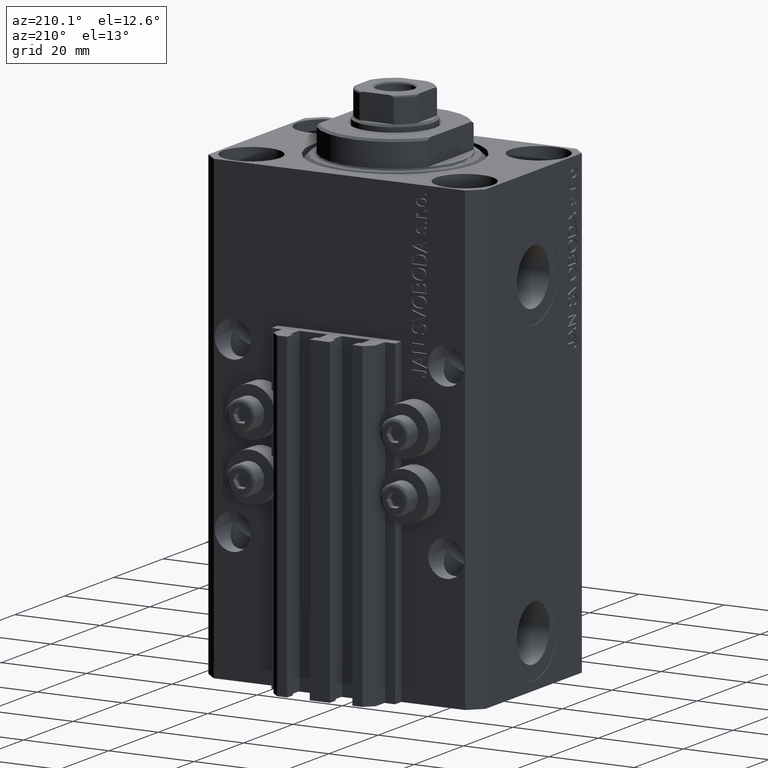
[diagram: clean part render]
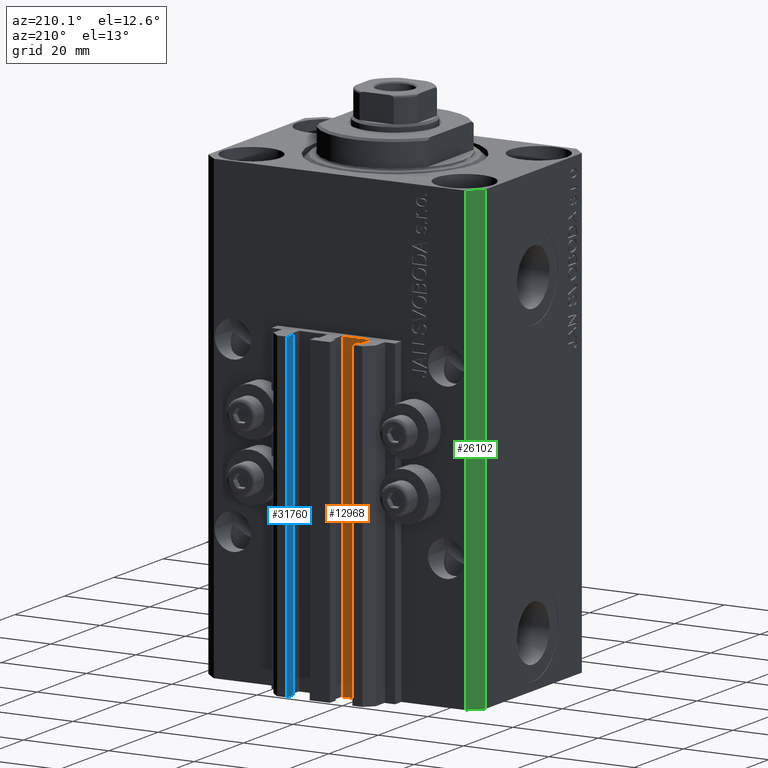
[diagram: same view with three faces highlighted in distinct colors, each labeled with its STEP entity id]
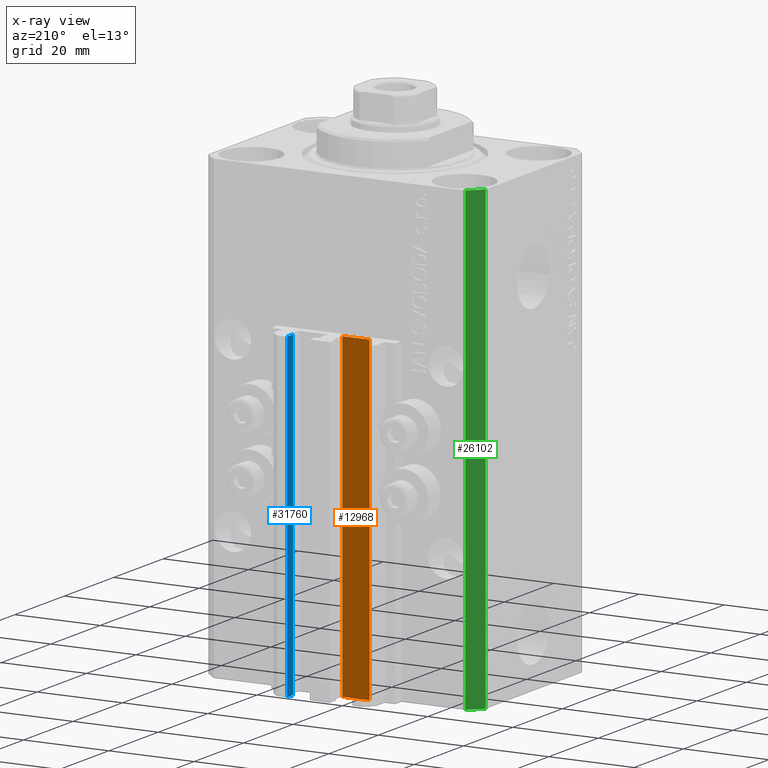
[diagram: x-ray of the same camera — body ghosted, the three highlighted faces saturated]
A machine part, auxiliary view with three faces highlighted in distinct colors.
The next image is the same camera in x-ray (body ghosted, the three faces saturated) — at least one of them is partly hidden behind the body in this view.
Their STEP definitions:

[orange] entity #12968 — the highlighted planar face has unit normal (0, 1, 0).
#547 = VERTEX_POINT ( 'NONE', #10346 ) ;
#3389 = EDGE_CURVE ( 'NONE', #547, #13100, #31306, .T. ) ;
#5018 = DIRECTION ( 'NONE',  ( -1.000000000000000000, 0.000000000000000000, 0.000000000000000000 ) ) ;
#5440 = LINE ( 'NONE', #26931, #20010 ) ;
#5746 = CARTESIAN_POINT ( 'NONE',  ( -1.800000000000000933, 24.49999999999949551, -108.0000000000000000 ) ) ;
#6365 = ORIENTED_EDGE ( 'NONE', *, *, #3389, .F. ) ;
#6702 = CARTESIAN_POINT ( 'NONE',  ( -8.199999999999999289, 24.49999999999949551, -33.00000000000000000 ) ) ;
#7763 = LINE ( 'NONE', #18623, #32738 ) ;
#9638 = EDGE_CURVE ( 'NONE', #40464, #547, #17305, .T. ) ;
#10346 = CARTESIAN_POINT ( 'NONE',  ( -1.800000000000000933, 24.49999999999949551, -33.00000000000000000 ) ) ;
#11696 = VECTOR ( 'NONE', #14173, 1000.000000000000000 ) ;
#12921 = EDGE_CURVE ( 'NONE', #40464, #19766, #7763, .T. ) ;
#12968 = ADVANCED_FACE ( 'NONE', ( #42662 ), #42418, .T. ) ;
#13100 = VERTEX_POINT ( 'NONE', #6702 ) ;
#13444 = CARTESIAN_POINT ( 'NONE',  ( -1.800000000000000933, 24.49999999999949551, -108.0000000000000000 ) ) ;
#14173 = DIRECTION ( 'NONE',  ( 0.000000000000000000, 0.000000000000000000, 1.000000000000000000 ) ) ;
#16312 = ORIENTED_EDGE ( 'NONE', *, *, #9638, .F. ) ;
#16777 = DIRECTION ( 'NONE',  ( 0.000000000000000000, 0.000000000000000000, 1.000000000000000000 ) ) ;
#17305 = LINE ( 'NONE', #13444, #11696 ) ;
#18623 = CARTESIAN_POINT ( 'NONE',  ( -1.800000000000000933, 24.49999999999949551, -108.0000000000000000 ) ) ;
#18874 = ORIENTED_EDGE ( 'NONE', *, *, #12921, .T. ) ;
#19766 = VERTEX_POINT ( 'NONE', #45561 ) ;
#20010 = VECTOR ( 'NONE', #16777, 1000.000000000000000 ) ;
#20861 = VECTOR ( 'NONE', #5018, 1000.000000000000000 ) ;
#23200 = DIRECTION ( 'NONE',  ( 0.000000000000000000, 0.000000000000000000, 1.000000000000000000 ) ) ;
#25397 = DIRECTION ( 'NONE',  ( -1.000000000000000000, 0.000000000000000000, 0.000000000000000000 ) ) ;
#25685 = CARTESIAN_POINT ( 'NONE',  ( -1.800000000000000933, 24.49999999999949551, -108.0000000000000000 ) ) ;
#26931 = CARTESIAN_POINT ( 'NONE',  ( -8.199999999999999289, 24.49999999999949551, -108.0000000000000000 ) ) ;
#27453 = CARTESIAN_POINT ( 'NONE',  ( -1.800000000000000933, 24.49999999999949551, -33.00000000000000000 ) ) ;
#27713 = DIRECTION ( 'NONE',  ( 0.000000000000000000, 1.000000000000000000, -0.000000000000000000 ) ) ;
#31306 = LINE ( 'NONE', #27453, #20861 ) ;
#32738 = VECTOR ( 'NONE', #25397, 1000.000000000000000 ) ;
#37591 = ORIENTED_EDGE ( 'NONE', *, *, #46596, .T. ) ;
#40464 = VERTEX_POINT ( 'NONE', #25685 ) ;
#42418 = PLANE ( 'NONE',  #43518 ) ;
#42662 = FACE_OUTER_BOUND ( 'NONE', #44506, .T. ) ;
#43518 = AXIS2_PLACEMENT_3D ( 'NONE', #5746, #27713, #23200 ) ;
#44506 = EDGE_LOOP ( 'NONE', ( #6365, #16312, #18874, #37591 ) ) ;
#45561 = CARTESIAN_POINT ( 'NONE',  ( -8.199999999999999289, 24.49999999999949551, -108.0000000000000000 ) ) ;
#46596 = EDGE_CURVE ( 'NONE', #19766, #13100, #5440, .T. ) ;

[blue] entity #31760 — the highlighted planar face has unit normal (-1, -0, 0).
#1666 = VECTOR ( 'NONE', #25533, 1000.000000000000000 ) ;
#3421 = VECTOR ( 'NONE', #14336, 1000.000000000000000 ) ;
#4790 = CARTESIAN_POINT ( 'NONE',  ( 7.649999999999995026, 30.49999999999949196, -108.0000000000000000 ) ) ;
#4886 = LINE ( 'NONE', #26616, #30427 ) ;
#6706 = DIRECTION ( 'NONE',  ( 3.614007241618365041E-16, -1.000000000000000000, 0.000000000000000000 ) ) ;
#7313 = VERTEX_POINT ( 'NONE', #13264 ) ;
#7888 = ORIENTED_EDGE ( 'NONE', *, *, #26083, .T. ) ;
#9190 = FACE_OUTER_BOUND ( 'NONE', #27906, .T. ) ;
#10450 = AXIS2_PLACEMENT_3D ( 'NONE', #27314, #23920, #6706 ) ;
#10805 = CARTESIAN_POINT ( 'NONE',  ( 7.649999999999995026, 30.49999999999949196, -33.00000000000000000 ) ) ;
#11655 = VECTOR ( 'NONE', #39498, 1000.000000000000000 ) ;
#13264 = CARTESIAN_POINT ( 'NONE',  ( 7.649999999999995026, 30.49999999999949196, -108.0000000000000000 ) ) ;
#14336 = DIRECTION ( 'NONE',  ( 0.000000000000000000, 0.000000000000000000, 1.000000000000000000 ) ) ;
#14439 = LINE ( 'NONE', #10805, #1666 ) ;
#17034 = VERTEX_POINT ( 'NONE', #33476 ) ;
#17564 = PLANE ( 'NONE',  #10450 ) ;
#17642 = EDGE_CURVE ( 'NONE', #7313, #41990, #45089, .T. ) ;
#19179 = EDGE_CURVE ( 'NONE', #17034, #31452, #14439, .T. ) ;
#19600 = DIRECTION ( 'NONE',  ( 0.000000000000000000, 0.000000000000000000, 1.000000000000000000 ) ) ;
#23920 = DIRECTION ( 'NONE',  ( -1.000000000000000000, -3.614007241618365041E-16, 0.000000000000000000 ) ) ;
#25533 = DIRECTION ( 'NONE',  ( 3.614007241618365534E-16, -1.000000000000000000, 0.000000000000000000 ) ) ;
#25884 = EDGE_CURVE ( 'NONE', #7313, #17034, #29756, .T. ) ;
#26083 = EDGE_CURVE ( 'NONE', #41990, #31452, #4886, .T. ) ;
#26375 = CARTESIAN_POINT ( 'NONE',  ( 7.649999999999995026, 30.49999999999949196, -108.0000000000000000 ) ) ;
#26616 = CARTESIAN_POINT ( 'NONE',  ( 7.649999999999995914, 28.09999999999950404, -108.0000000000000000 ) ) ;
#27314 = CARTESIAN_POINT ( 'NONE',  ( 7.649999999999995026, 30.49999999999949196, -108.0000000000000000 ) ) ;
#27906 = EDGE_LOOP ( 'NONE', ( #42238, #39023, #33166, #7888 ) ) ;
#29756 = LINE ( 'NONE', #26375, #3421 ) ;
#30427 = VECTOR ( 'NONE', #19600, 1000.000000000000000 ) ;
#31452 = VERTEX_POINT ( 'NONE', #39390 ) ;
#31760 = ADVANCED_FACE ( 'NONE', ( #9190 ), #17564, .T. ) ;
#33166 = ORIENTED_EDGE ( 'NONE', *, *, #17642, .T. ) ;
#33476 = CARTESIAN_POINT ( 'NONE',  ( 7.649999999999995026, 30.49999999999949196, -33.00000000000000000 ) ) ;
#39023 = ORIENTED_EDGE ( 'NONE', *, *, #25884, .F. ) ;
#39390 = CARTESIAN_POINT ( 'NONE',  ( 7.649999999999995914, 28.09999999999950404, -33.00000000000000000 ) ) ;
#39498 = DIRECTION ( 'NONE',  ( 3.614007241618365534E-16, -1.000000000000000000, 0.000000000000000000 ) ) ;
#40383 = CARTESIAN_POINT ( 'NONE',  ( 7.649999999999995914, 28.09999999999950404, -108.0000000000000000 ) ) ;
#41990 = VERTEX_POINT ( 'NONE', #40383 ) ;
#42238 = ORIENTED_EDGE ( 'NONE', *, *, #19179, .F. ) ;
#45089 = LINE ( 'NONE', #4790, #11655 ) ;

[green] entity #26102 — the highlighted planar face has unit normal (-0.7071, 0.7071, 0).
#962 = VECTOR ( 'NONE', #21456, 1000.000000000000114 ) ;
#1193 = VERTEX_POINT ( 'NONE', #41127 ) ;
#2174 = LINE ( 'NONE', #2419, #4000 ) ;
#2419 = CARTESIAN_POINT ( 'NONE',  ( -32.49999999999650413, 19.49999999999949907, -108.0000000000000000 ) ) ;
#3110 = CARTESIAN_POINT ( 'NONE',  ( -29.49999999999650413, 22.49999999999949907, -108.0000000000000000 ) ) ;
#3246 = CARTESIAN_POINT ( 'NONE',  ( -29.49999999999650413, 22.49999999999949907, -108.0000000000000000 ) ) ;
#4000 = VECTOR ( 'NONE', #10388, 1000.000000000000000 ) ;
#4640 = EDGE_CURVE ( 'NONE', #11551, #46018, #10250, .T. ) ;
#5667 = CARTESIAN_POINT ( 'NONE',  ( -29.49999999999650413, 22.49999999999949907, -108.0000000000000000 ) ) ;
#7027 = VECTOR ( 'NONE', #10000, 1000.000000000000000 ) ;
#9208 = CARTESIAN_POINT ( 'NONE',  ( -29.49999999999650413, 22.49999999999949907, -108.0000000000000000 ) ) ;
#10000 = DIRECTION ( 'NONE',  ( 0.000000000000000000, 0.000000000000000000, 1.000000000000000000 ) ) ;
#10250 = LINE ( 'NONE', #3246, #7027 ) ;
#10388 = DIRECTION ( 'NONE',  ( 0.000000000000000000, 0.000000000000000000, 1.000000000000000000 ) ) ;
#10741 = EDGE_CURVE ( 'NONE', #46018, #15131, #21943, .T. ) ;
#11551 = VERTEX_POINT ( 'NONE', #5667 ) ;
#15131 = VERTEX_POINT ( 'NONE', #45677 ) ;
#17122 = DIRECTION ( 'NONE',  ( -0.7071067811865474617, -0.7071067811865474617, 0.000000000000000000 ) ) ;
#17637 = PLANE ( 'NONE',  #45065 ) ;
#20284 = CARTESIAN_POINT ( 'NONE',  ( -29.49999999999650413, 22.49999999999949907, 0.000000000000000000 ) ) ;
#20546 = EDGE_CURVE ( 'NONE', #1193, #15131, #2174, .T. ) ;
#21377 = ORIENTED_EDGE ( 'NONE', *, *, #10741, .F. ) ;
#21456 = DIRECTION ( 'NONE',  ( -0.7071067811865474617, -0.7071067811865474617, 0.000000000000000000 ) ) ;
#21943 = LINE ( 'NONE', #40270, #962 ) ;
#26102 = ADVANCED_FACE ( 'NONE', ( #30696 ), #17637, .T. ) ;
#30696 = FACE_OUTER_BOUND ( 'NONE', #31631, .T. ) ;
#31631 = EDGE_LOOP ( 'NONE', ( #21377, #40682, #42131, #32057 ) ) ;
#32057 = ORIENTED_EDGE ( 'NONE', *, *, #20546, .T. ) ;
#37282 = LINE ( 'NONE', #3110, #45510 ) ;
#39102 = DIRECTION ( 'NONE',  ( -0.7071067811865474617, -0.7071067811865474617, 0.000000000000000000 ) ) ;
#40270 = CARTESIAN_POINT ( 'NONE',  ( -29.49999999999650413, 22.49999999999949907, 0.000000000000000000 ) ) ;
#40682 = ORIENTED_EDGE ( 'NONE', *, *, #4640, .F. ) ;
#41127 = CARTESIAN_POINT ( 'NONE',  ( -32.49999999999650413, 19.49999999999949907, -108.0000000000000000 ) ) ;
#41736 = EDGE_CURVE ( 'NONE', #11551, #1193, #37282, .T. ) ;
#42131 = ORIENTED_EDGE ( 'NONE', *, *, #41736, .T. ) ;
#45065 = AXIS2_PLACEMENT_3D ( 'NONE', #9208, #46605, #39102 ) ;
#45510 = VECTOR ( 'NONE', #17122, 1000.000000000000114 ) ;
#45677 = CARTESIAN_POINT ( 'NONE',  ( -32.49999999999650413, 19.49999999999949907, 0.000000000000000000 ) ) ;
#46018 = VERTEX_POINT ( 'NONE', #20284 ) ;
#46605 = DIRECTION ( 'NONE',  ( -0.7071067811865475727, 0.7071067811865475727, 0.000000000000000000 ) ) ;